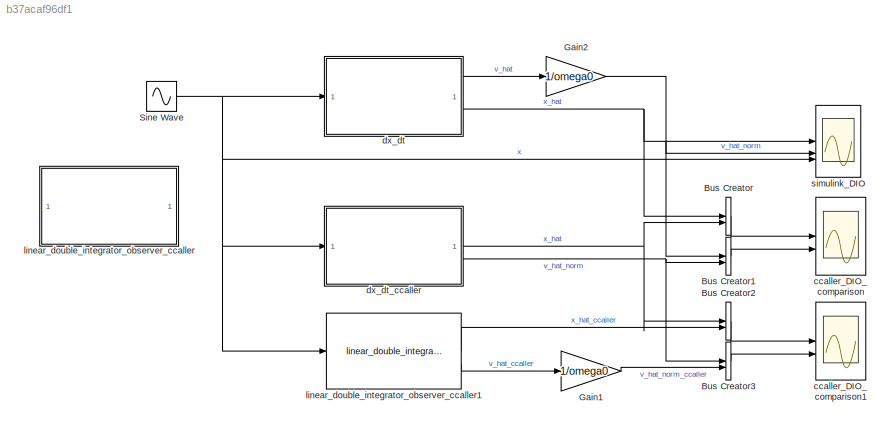
MODEL slx_b37acaf96df1
KIND model
CONFIG AbsTol = auto
CONFIG EnableMultiTasking = off
CONFIG FixedStep = tc
CONFIG MaxStep = tc
CONFIG MinStep = auto
CONFIG RelTol = auto
CONFIG SampleTimeConstraint = Unconstrained
CONFIG SolverName = ode23tb
CONFIG StartTime = 0.0
CONFIG StopTime = simlength
BLOCK [BusCreator] Bus Creator
  DisplayOption = bar
  InheritFromInputs = on
  Inputs = 2
BLOCK [BusCreator] Bus Creator1
  DisplayOption = bar
  InheritFromInputs = on
  Inputs = 2
BLOCK [BusCreator] Bus Creator2
  DisplayOption = bar
  InheritFromInputs = on
  Inputs = 2
BLOCK [BusCreator] Bus Creator3
  DisplayOption = bar
  InheritFromInputs = on
  Inputs = 2
BLOCK [Gain] Gain1
  Gain = 1/omega0
BLOCK [Gain] Gain2
  Gain = 1/omega0
BLOCK [Sin] Sine Wave
  Frequency = omega0
  SampleTime = 0
BLOCK [Scope] ccaller_DIO_comparison
  ActiveDisplayYMaximum = 1.2688563764095306
  ActiveDisplayYMinimum = -1.2688563764095306
  DataLoggingVariableName = ScopeData1
  Floating = off
  GraphicalSettings = {"Style":{"BackgroundColor":[0.12941176470588237,0.12941176470588237,0.12941176470588237],"AxesColor":[0.07058823529411765,0.07058823529411765,0.07058823529411765],"LabelsColor":[0.8509803921568627,0.8509803921568627,0.8509803921568627],"PreserveColors":false,"Visible":[true,true,true,true],"LineStyle":["-","-","-","-"],"LineWidth":[1.5,1.5,1.5,1.5],"BarWidth":[0.9,0.9,0.9,0.9],"LineColor":["auto"...<+2661ch>
  LayoutDimensionsString = [2,1]
  MultipleDisplayCache = [{"MaxYLimMag":1.2688563764095306,"MaxYLimReal":1.2688563764095306,"MinYLimMag":0,"MinYLimReal":-1.2688563764095306,"PlotAsMagnitudePhase":false,"ShowGrid":true,"ShowLegend":true,"Title":"%<SignalLabel>","YLabel":""},{"MaxYLimMag":3.0873722731567588,"MaxYLimReal":1.8825440689980237,"MinYLimMag":0,"MinYLimReal":-2.6355616965972333,"PlotAsMagnitudePhase":false,"ShowGrid":true,"ShowLegend":true,"Titl...<+33ch>
  NumInputPorts = 2
  ScopeFrameLocation = window
  ShowLegend = on
  WasSavedAsWebScope = on
  WindowPosition = [744.000000,330.000000,883.000000,420.000000,]
BLOCK [Scope] ccaller_DIO_comparison1
  ActiveDisplayYMaximum = 1.2688563764095306
  ActiveDisplayYMinimum = -1.2688563764095306
  DataLoggingVariableName = ScopeData2
  Floating = off
  GraphicalSettings = {"AxesScalingProperties":{"AlignXAxis":"Center","AlignYAxis":"Center","AutoScaleXAxisLimits":false,"AxesScaling":"Manual","AxesScalingNumUpdates":10,"ExpandOnly":true,"ScaleAxesLimitsAtStop":false,"XAxisDataRange":100,"YAxisDataRange":80},"DisplayProperties":{"ColorOrder":["auto","auto","auto","auto","auto","auto","auto","auto","auto","auto","auto","auto","auto","auto","auto","auto","auto","auto",...<+2697ch>
  LayoutDimensionsString = [2,1]
  MultipleDisplayCache = [{"MaxYLimMag":1.2688563764095306,"MaxYLimReal":1.2688563764095306,"MinYLimMag":0,"MinYLimReal":-1.2688563764095306,"PlotAsMagnitudePhase":false,"ShowGrid":true,"ShowLegend":true,"Title":"%<SignalLabel>","YLabel":""},{"MaxYLimMag":3.0873722731567588,"MaxYLimReal":1.58133701795834,"MinYLimMag":0,"MinYLimReal":-2.2841534703842683,"PlotAsMagnitudePhase":false,"ShowGrid":true,"ShowLegend":true,"Title"...<+31ch>
  NumInputPorts = 2
  ScopeFrameLocation = window
  ShowLegend = on
  WasSavedAsWebScope = on
  WindowPosition = [744.000000,330.000000,883.000000,420.000000,]
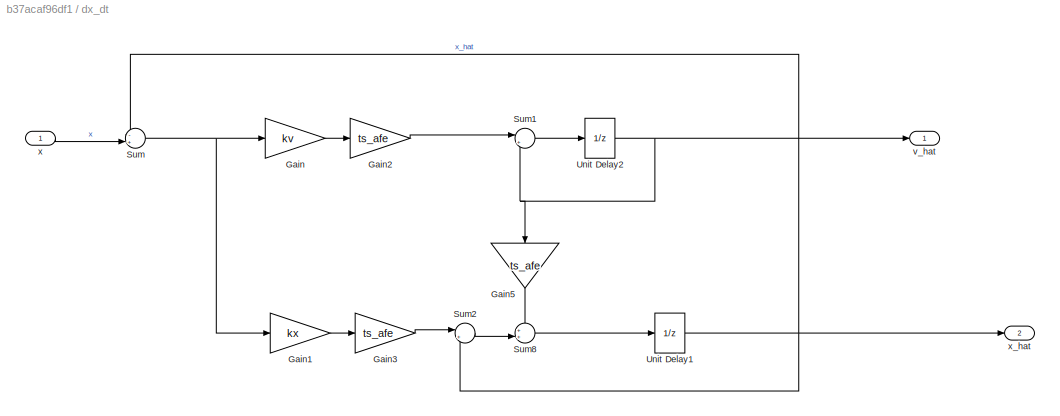
BLOCK [SubSystem] dx_dt
BLOCK [Gain] dx_dt/Gain
  Gain = kv
BLOCK [Gain] dx_dt/Gain1
  Gain = kx
BLOCK [Gain] dx_dt/Gain2
  Gain = ts_afe
BLOCK [Gain] dx_dt/Gain3
  Gain = ts_afe
BLOCK [Gain] dx_dt/Gain5
  Gain = ts_afe
  NameLocation = left
BLOCK [Sum] dx_dt/Sum
  Inputs = -+|
BLOCK [Sum] dx_dt/Sum1
  Inputs = |++
BLOCK [Sum] dx_dt/Sum2
  Inputs = |++
BLOCK [Sum] dx_dt/Sum8
  Inputs = ++|
BLOCK [UnitDelay] dx_dt/Unit Delay1
  HasFrameUpgradeWarning = on
  NameLocation = top
  SampleTime = ts_afe
BLOCK [UnitDelay] dx_dt/Unit Delay2
  HasFrameUpgradeWarning = on
  SampleTime = ts_afe
BLOCK [Outport] dx_dt/v_hat
  VectorParamsAs1DForOutWhenUnconnected = off
BLOCK [Inport] dx_dt/x
BLOCK [Outport] dx_dt/x_hat
  Port = 2
  VectorParamsAs1DForOutWhenUnconnected = off
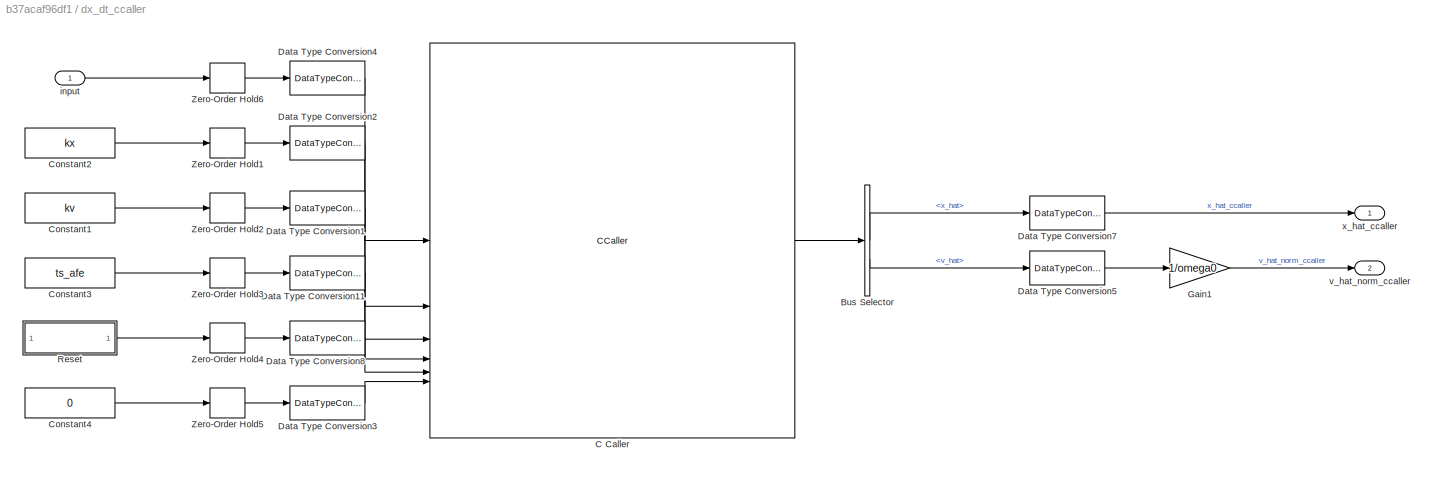
BLOCK [SubSystem] dx_dt_ccaller
BLOCK [BusSelector] dx_dt_ccaller/Bus Selector
  OutputSignals = x_hat,v_hat
BLOCK [CCaller] dx_dt_ccaller/C Caller
  FunctionName = linear_double_integrator_observer_process_simulink
  PortSpecificationStruct = %)30     .    , P   8    (     @         %    "     <    !     0         %  0 "0    $    _    07)G3F%M90  4&]R=$YA;64 4V-O<&4     26YD97@     5'EP90      4VEZ90      27-';&]B86P   X    P    !@    @    $          4    (     0    ,    !         !   P!O=70 #@   #     &    "     0         !0    @    !     P    $         $  # &]U=  .    .     8    (    !          %    "     $    &     0         0    !@...<+3773ch>
  SampleTime = ts_afe
BLOCK [Constant] dx_dt_ccaller/Constant1
  Value = kv
BLOCK [Constant] dx_dt_ccaller/Constant2
  Value = kx
BLOCK [Constant] dx_dt_ccaller/Constant3
  Value = ts_afe
BLOCK [Constant] dx_dt_ccaller/Constant4
  Value = 0
BLOCK [DataTypeConversion] dx_dt_ccaller/Data Type Conversion1
  OutDataTypeStr = single
  RndMeth = Floor
  SaturateOnIntegerOverflow = off
BLOCK [DataTypeConversion] dx_dt_ccaller/Data Type Conversion11
  OutDataTypeStr = single
  RndMeth = Floor
  SaturateOnIntegerOverflow = off
BLOCK [DataTypeConversion] dx_dt_ccaller/Data Type Conversion2
  OutDataTypeStr = single
  RndMeth = Floor
  SaturateOnIntegerOverflow = off
BLOCK [DataTypeConversion] dx_dt_ccaller/Data Type Conversion3
  OutDataTypeStr = uint8
  RndMeth = Floor
  SaturateOnIntegerOverflow = off
BLOCK [DataTypeConversion] dx_dt_ccaller/Data Type Conversion4
  OutDataTypeStr = single
  RndMeth = Floor
  SaturateOnIntegerOverflow = off
BLOCK [DataTypeConversion] dx_dt_ccaller/Data Type Conversion5
  OutDataTypeStr = double
  RndMeth = Floor
  SaturateOnIntegerOverflow = off
BLOCK [DataTypeConversion] dx_dt_ccaller/Data Type Conversion7
  OutDataTypeStr = double
  RndMeth = Floor
  SaturateOnIntegerOverflow = off
BLOCK [DataTypeConversion] dx_dt_ccaller/Data Type Conversion8
  OutDataTypeStr = uint8
  RndMeth = Floor
  SaturateOnIntegerOverflow = off
BLOCK [Gain] dx_dt_ccaller/Gain1
  Gain = 1/omega0
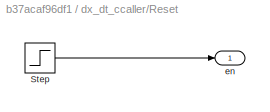
BLOCK [SubSystem] dx_dt_ccaller/Reset
BLOCK [Step] dx_dt_ccaller/Reset/Step
  After = 0
  Before = 1
  SampleTime = ts_afe
  Time = 0.05
BLOCK [Outport] dx_dt_ccaller/Reset/en
  IconDisplay = Signal name
BLOCK [ZeroOrderHold] dx_dt_ccaller/Zero-Order Hold1
  SampleTime = ts_afe
BLOCK [ZeroOrderHold] dx_dt_ccaller/Zero-Order Hold2
  SampleTime = ts_afe
BLOCK [ZeroOrderHold] dx_dt_ccaller/Zero-Order Hold3
  SampleTime = ts_afe
BLOCK [ZeroOrderHold] dx_dt_ccaller/Zero-Order Hold4
  SampleTime = ts_afe
BLOCK [ZeroOrderHold] dx_dt_ccaller/Zero-Order Hold5
  SampleTime = ts_afe
BLOCK [ZeroOrderHold] dx_dt_ccaller/Zero-Order Hold6
  SampleTime = ts_afe
BLOCK [Inport] dx_dt_ccaller/input
BLOCK [Outport] dx_dt_ccaller/v_hat_norm_ccaller
  Port = 2
BLOCK [Outport] dx_dt_ccaller/x_hat_ccaller
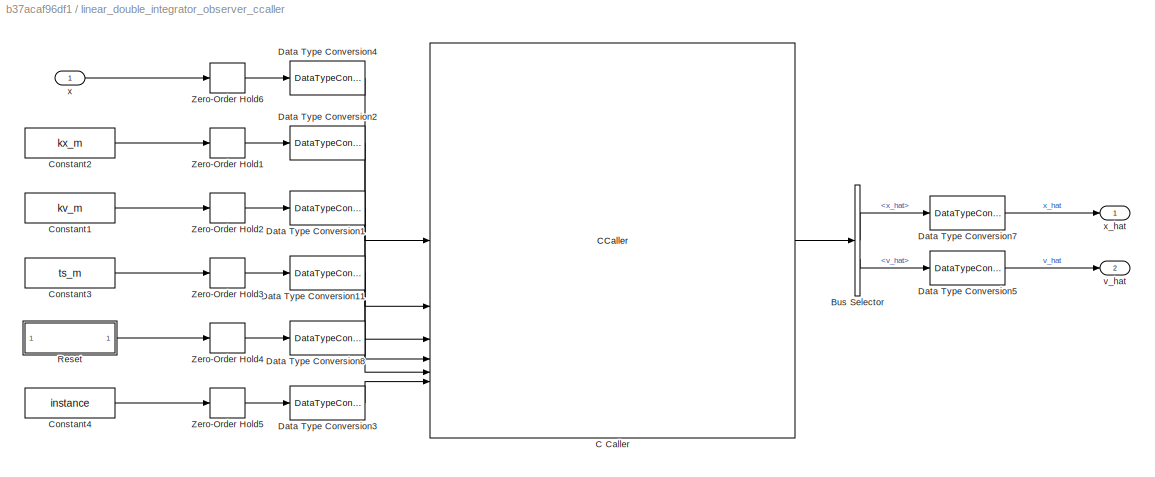
BLOCK [SubSystem] linear_double_integrator_observer_ccaller
  Commented = on
BLOCK [BusSelector] linear_double_integrator_observer_ccaller/Bus Selector
  OutputSignals = x_hat,v_hat
BLOCK [CCaller] linear_double_integrator_observer_ccaller/C Caller
  FunctionName = linear_double_integrator_observer_process_simulink
  PortSpecificationStruct = %)30     .    , P   8    (     @         %    "     <    !     0         %  0 "0    $    _    07)G3F%M90  4&]R=$YA;64 4V-O<&4     26YD97@     5'EP90      4VEZ90      27-';&]B86P   X    P    !@    @    $          4    (     0    ,    !         !   P!O=70 #@   #     &    "     0         !0    @    !     P    $         $  # &]U=  .    .     8    (    !          %    "     $    &     0         0    !@...<+3773ch>
  SampleTime = tc_m
BLOCK [Constant] linear_double_integrator_observer_ccaller/Constant1
  Value = kv_m
BLOCK [Constant] linear_double_integrator_observer_ccaller/Constant2
  Value = kx_m
BLOCK [Constant] linear_double_integrator_observer_ccaller/Constant3
  Value = ts_m
BLOCK [Constant] linear_double_integrator_observer_ccaller/Constant4
  Value = instance
BLOCK [DataTypeConversion] linear_double_integrator_observer_ccaller/Data Type Conversion1
  OutDataTypeStr = single
  RndMeth = Floor
  SaturateOnIntegerOverflow = off
BLOCK [DataTypeConversion] linear_double_integrator_observer_ccaller/Data Type Conversion11
  OutDataTypeStr = single
  RndMeth = Floor
  SaturateOnIntegerOverflow = off
BLOCK [DataTypeConversion] linear_double_integrator_observer_ccaller/Data Type Conversion2
  OutDataTypeStr = single
  RndMeth = Floor
  SaturateOnIntegerOverflow = off
BLOCK [DataTypeConversion] linear_double_integrator_observer_ccaller/Data Type Conversion3
  OutDataTypeStr = uint8
  RndMeth = Floor
  SaturateOnIntegerOverflow = off
BLOCK [DataTypeConversion] linear_double_integrator_observer_ccaller/Data Type Conversion4
  OutDataTypeStr = single
  RndMeth = Floor
  SaturateOnIntegerOverflow = off
BLOCK [DataTypeConversion] linear_double_integrator_observer_ccaller/Data Type Conversion5
  OutDataTypeStr = double
  RndMeth = Floor
  SaturateOnIntegerOverflow = off
BLOCK [DataTypeConversion] linear_double_integrator_observer_ccaller/Data Type Conversion7
  OutDataTypeStr = double
  RndMeth = Floor
  SaturateOnIntegerOverflow = off
BLOCK [DataTypeConversion] linear_double_integrator_observer_ccaller/Data Type Conversion8
  OutDataTypeStr = uint8
  RndMeth = Floor
  SaturateOnIntegerOverflow = off
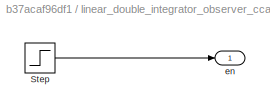
BLOCK [SubSystem] linear_double_integrator_observer_ccaller/Reset
BLOCK [Step] linear_double_integrator_observer_ccaller/Reset/Step
  After = 0
  Before = 1
  Time = time_release
BLOCK [Outport] linear_double_integrator_observer_ccaller/Reset/en
  IconDisplay = Signal name
BLOCK [ZeroOrderHold] linear_double_integrator_observer_ccaller/Zero-Order Hold1
  SampleTime = tc_m
BLOCK [ZeroOrderHold] linear_double_integrator_observer_ccaller/Zero-Order Hold2
  SampleTime = tc_m
BLOCK [ZeroOrderHold] linear_double_integrator_observer_ccaller/Zero-Order Hold3
  SampleTime = tc_m
BLOCK [ZeroOrderHold] linear_double_integrator_observer_ccaller/Zero-Order Hold4
  SampleTime = tc_m
BLOCK [ZeroOrderHold] linear_double_integrator_observer_ccaller/Zero-Order Hold5
  SampleTime = tc_m
BLOCK [ZeroOrderHold] linear_double_integrator_observer_ccaller/Zero-Order Hold6
  SampleTime = tc_m
BLOCK [Outport] linear_double_integrator_observer_ccaller/v_hat
  Port = 2
BLOCK [Inport] linear_double_integrator_observer_ccaller/x
BLOCK [Outport] linear_double_integrator_observer_ccaller/x_hat
BLOCK [Reference] linear_double_integrator_observer_ccaller1  REF=linear_double_integrator_observer_ccaller/linear_double_integrator_observer_ccaller  (lib defined in slx_f0730cbc17aa)
  SourceBlock = linear_double_integrator_observer_ccaller/linear_double_integrator_observer_ccaller
BLOCK [Scope] simulink_DIO
  ActiveDisplayYMaximum = 1.4326922901544779E+306
  ActiveDisplayYMinimum = -1.2826755991631912E+307
  Floating = off
  GraphicalSettings = {"Style":{"BackgroundColor":[0.12941176470588237,0.12941176470588237,0.12941176470588237],"AxesColor":[0.07058823529411765,0.07058823529411765,0.07058823529411765],"LabelsColor":[0.8509803921568627,0.8509803921568627,0.8509803921568627],"PreserveColors":false,"Visible":[true,true,true],"LineStyle":["-","-","-"],"LineWidth":[1.5,1.5,1.5],"BarWidth":[0.9,0.9,0.9],"LineColor":["auto","auto","auto"],"...<+2244ch>
  MultipleDisplayCache = [{"MaxYLimMag":1.2826755991631912E+307,"MaxYLimReal":1.4326922901544779E+306,"MinYLimMag":0,"MinYLimReal":-1.2826755991631912E+307,"PlotAsMagnitudePhase":false,"ShowGrid":true,"ShowLegend":true,"Title":"%<SignalLabel>","YLabel":""}]
  NumInputPorts = 3
  ScopeFrameLocation = window
  ShowLegend = on
  WasSavedAsWebScope = on
  WindowPosition = [744.000000,330.000000,883.000000,420.000000,]
LINE Bus Creator1:1 -> ccaller_DIO_comparison:2
LINE Bus Creator2:1 -> ccaller_DIO_comparison1:1
LINE Bus Creator3:1 -> ccaller_DIO_comparison1:2
LINE Bus Creator:1 -> ccaller_DIO_comparison:1
LINE Gain1:1 -> Bus Creator3:2
NET Gain2:1 -> Bus Creator1:1, simulink_DIO:2
NET Sine Wave:1 -> dx_dt:1, dx_dt_ccaller:1, linear_double_integrator_observer_ccaller1:1, simulink_DIO:3
LINE dx_dt/Gain1:1 -> dx_dt/Gain3:1
LINE dx_dt/Gain2:1 -> dx_dt/Sum1:1
LINE dx_dt/Gain3:1 -> dx_dt/Sum2:1
LINE dx_dt/Gain5:1 -> dx_dt/Sum8:1
LINE dx_dt/Gain:1 -> dx_dt/Gain2:1
LINE dx_dt/Sum1:1 -> dx_dt/Unit Delay2:1
LINE dx_dt/Sum2:1 -> dx_dt/Sum8:2
LINE dx_dt/Sum8:1 -> dx_dt/Unit Delay1:1
NET dx_dt/Sum:1 -> dx_dt/Gain1:1, dx_dt/Gain:1
NET dx_dt/Unit Delay1:1 -> dx_dt/Sum2:2, dx_dt/Sum:1, dx_dt/x_hat:1
NET dx_dt/Unit Delay2:1 -> dx_dt/Gain5:1, dx_dt/Sum1:2, dx_dt/v_hat:1
LINE dx_dt/x:1 -> dx_dt/Sum:2
LINE dx_dt:1 -> Gain2:1
NET dx_dt:2 -> Bus Creator:1, simulink_DIO:1
LINE dx_dt_ccaller/Bus Selector:1 -> dx_dt_ccaller/Data Type Conversion7:1
LINE dx_dt_ccaller/Bus Selector:2 -> dx_dt_ccaller/Data Type Conversion5:1
LINE dx_dt_ccaller/C Caller:1 -> dx_dt_ccaller/Bus Selector:1
LINE dx_dt_ccaller/Constant1:1 -> dx_dt_ccaller/Zero-Order Hold2:1
LINE dx_dt_ccaller/Constant2:1 -> dx_dt_ccaller/Zero-Order Hold1:1
LINE dx_dt_ccaller/Constant3:1 -> dx_dt_ccaller/Zero-Order Hold3:1
LINE dx_dt_ccaller/Constant4:1 -> dx_dt_ccaller/Zero-Order Hold5:1
LINE dx_dt_ccaller/Data Type Conversion11:1 -> dx_dt_ccaller/C Caller:4
LINE dx_dt_ccaller/Data Type Conversion1:1 -> dx_dt_ccaller/C Caller:3
LINE dx_dt_ccaller/Data Type Conversion2:1 -> dx_dt_ccaller/C Caller:2
LINE dx_dt_ccaller/Data Type Conversion3:1 -> dx_dt_ccaller/C Caller:6
LINE dx_dt_ccaller/Data Type Conversion4:1 -> dx_dt_ccaller/C Caller:1
LINE dx_dt_ccaller/Data Type Conversion5:1 -> dx_dt_ccaller/Gain1:1
LINE dx_dt_ccaller/Data Type Conversion7:1 -> dx_dt_ccaller/x_hat_ccaller:1
LINE dx_dt_ccaller/Data Type Conversion8:1 -> dx_dt_ccaller/C Caller:5
LINE dx_dt_ccaller/Gain1:1 -> dx_dt_ccaller/v_hat_norm_ccaller:1
LINE dx_dt_ccaller/Reset/Step:1 -> dx_dt_ccaller/Reset/en:1
LINE dx_dt_ccaller/Reset:1 -> dx_dt_ccaller/Zero-Order Hold4:1
LINE dx_dt_ccaller/Zero-Order Hold1:1 -> dx_dt_ccaller/Data Type Conversion2:1
LINE dx_dt_ccaller/Zero-Order Hold2:1 -> dx_dt_ccaller/Data Type Conversion1:1
LINE dx_dt_ccaller/Zero-Order Hold3:1 -> dx_dt_ccaller/Data Type Conversion11:1
LINE dx_dt_ccaller/Zero-Order Hold4:1 -> dx_dt_ccaller/Data Type Conversion8:1
LINE dx_dt_ccaller/Zero-Order Hold5:1 -> dx_dt_ccaller/Data Type Conversion3:1
LINE dx_dt_ccaller/Zero-Order Hold6:1 -> dx_dt_ccaller/Data Type Conversion4:1
LINE dx_dt_ccaller/input:1 -> dx_dt_ccaller/Zero-Order Hold6:1
NET dx_dt_ccaller:1 -> Bus Creator2:1, Bus Creator:2
NET dx_dt_ccaller:2 -> Bus Creator1:2, Bus Creator3:1
LINE linear_double_integrator_observer_ccaller/Bus Selector:1 -> linear_double_integrator_observer_ccaller/Data Type Conversion7:1
LINE linear_double_integrator_observer_ccaller/Bus Selector:2 -> linear_double_integrator_observer_ccaller/Data Type Conversion5:1
LINE linear_double_integrator_observer_ccaller/C Caller:1 -> linear_double_integrator_observer_ccaller/Bus Selector:1
LINE linear_double_integrator_observer_ccaller/Constant1:1 -> linear_double_integrator_observer_ccaller/Zero-Order Hold2:1
LINE linear_double_integrator_observer_ccaller/Constant2:1 -> linear_double_integrator_observer_ccaller/Zero-Order Hold1:1
LINE linear_double_integrator_observer_ccaller/Constant3:1 -> linear_double_integrator_observer_ccaller/Zero-Order Hold3:1
LINE linear_double_integrator_observer_ccaller/Constant4:1 -> linear_double_integrator_observer_ccaller/Zero-Order Hold5:1
LINE linear_double_integrator_observer_ccaller/Data Type Conversion11:1 -> linear_double_integrator_observer_ccaller/C Caller:4
LINE linear_double_integrator_observer_ccaller/Data Type Conversion1:1 -> linear_double_integrator_observer_ccaller/C Caller:3
LINE linear_double_integrator_observer_ccaller/Data Type Conversion2:1 -> linear_double_integrator_observer_ccaller/C Caller:2
LINE linear_double_integrator_observer_ccaller/Data Type Conversion3:1 -> linear_double_integrator_observer_ccaller/C Caller:6
LINE linear_double_integrator_observer_ccaller/Data Type Conversion4:1 -> linear_double_integrator_observer_ccaller/C Caller:1
LINE linear_double_integrator_observer_ccaller/Data Type Conversion5:1 -> linear_double_integrator_observer_ccaller/v_hat:1
LINE linear_double_integrator_observer_ccaller/Data Type Conversion7:1 -> linear_double_integrator_observer_ccaller/x_hat:1
LINE linear_double_integrator_observer_ccaller/Data Type Conversion8:1 -> linear_double_integrator_observer_ccaller/C Caller:5
LINE linear_double_integrator_observer_ccaller/Reset/Step:1 -> linear_double_integrator_observer_ccaller/Reset/en:1
LINE linear_double_integrator_observer_ccaller/Reset:1 -> linear_double_integrator_observer_ccaller/Zero-Order Hold4:1
LINE linear_double_integrator_observer_ccaller/Zero-Order Hold1:1 -> linear_double_integrator_observer_ccaller/Data Type Conversion2:1
LINE linear_double_integrator_observer_ccaller/Zero-Order Hold2:1 -> linear_double_integrator_observer_ccaller/Data Type Conversion1:1
LINE linear_double_integrator_observer_ccaller/Zero-Order Hold3:1 -> linear_double_integrator_observer_ccaller/Data Type Conversion11:1
LINE linear_double_integrator_observer_ccaller/Zero-Order Hold4:1 -> linear_double_integrator_observer_ccaller/Data Type Conversion8:1
LINE linear_double_integrator_observer_ccaller/Zero-Order Hold5:1 -> linear_double_integrator_observer_ccaller/Data Type Conversion3:1
LINE linear_double_integrator_observer_ccaller/Zero-Order Hold6:1 -> linear_double_integrator_observer_ccaller/Data Type Conversion4:1
LINE linear_double_integrator_observer_ccaller/x:1 -> linear_double_integrator_observer_ccaller/Zero-Order Hold6:1
LINE linear_double_integrator_observer_ccaller1:1 -> Bus Creator2:2
LINE linear_double_integrator_observer_ccaller1:2 -> Gain1:1
note: NET lines group one-source signal fan-out (src -> all destinations, sorted); 1:1 wires keep LINE
